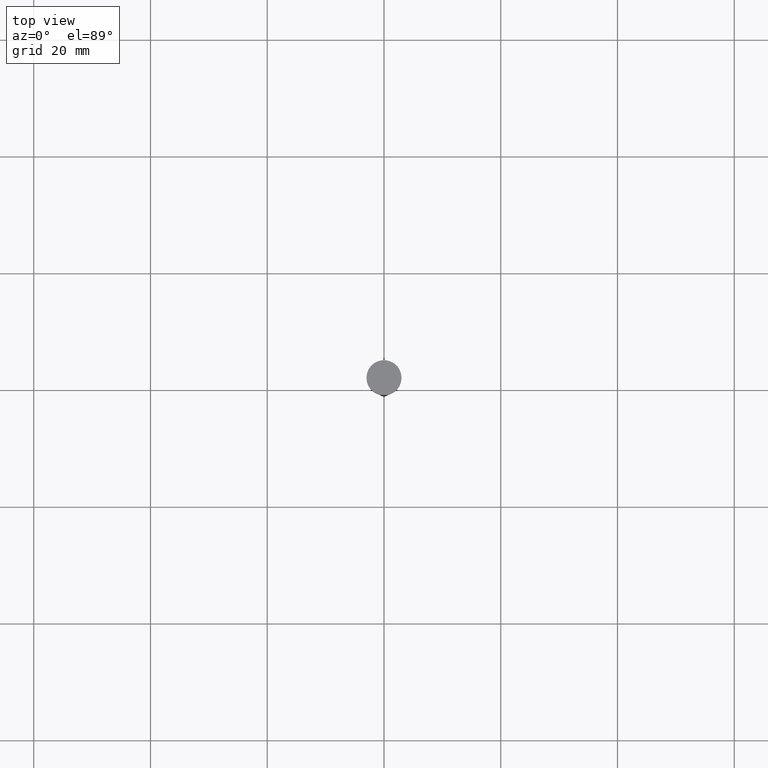
[diagram: clean part render]
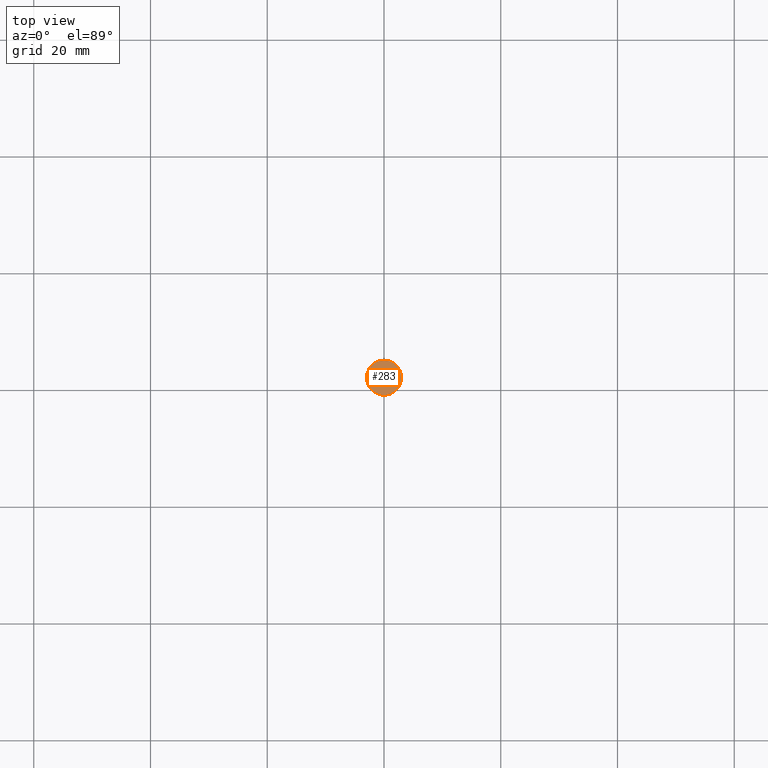
[diagram: same view with one face highlighted and labeled with its STEP entity id]
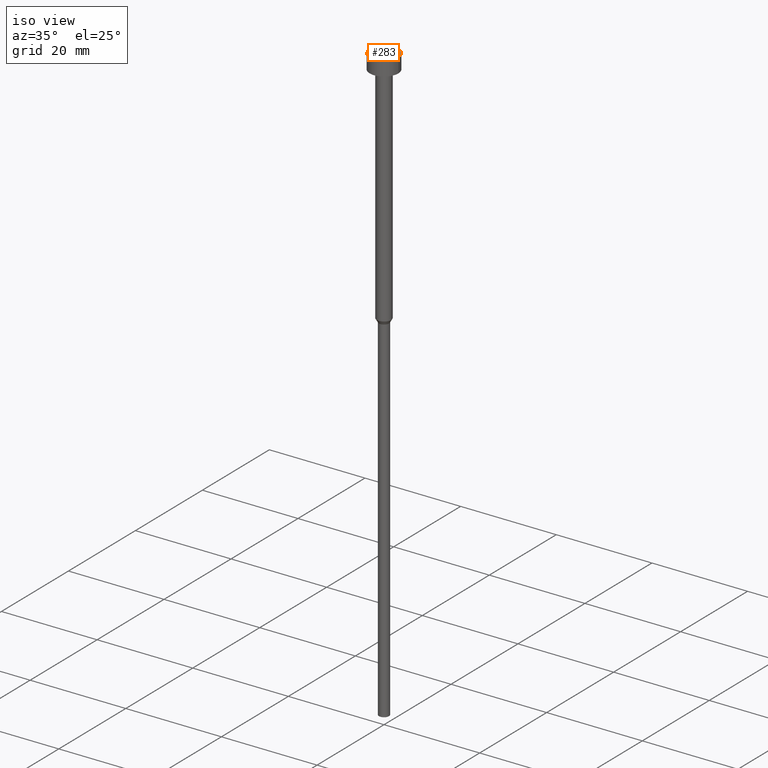
[diagram: same view with one face highlighted and labeled with its STEP entity id]
A machine part, top view. The second image highlights one B-rep face of the part: STEP entity #283.
A second angle (iso view) of the same face is appended — the face is thin or edge-on in the first view.
In plain terms, the highlighted planar face has unit normal (0, -0, 1).
Its self-contained STEP definition (entity closure, byte-faithful):
#5 = DIRECTION ( 'NONE',  ( -0.000000000000000000, -0.000000000000000000, 1.000000000000000000 ) ) ;
#38 = CIRCLE ( 'NONE', #234, 3.000000000000000000 ) ;
#52 = CARTESIAN_POINT ( 'NONE',  ( -3.000000000000000000, 3.673940397442059868E-16, -3.673940397442059868E-16 ) ) ;
#65 = EDGE_LOOP ( 'NONE', ( #341, #300 ) ) ;
#93 = DIRECTION ( 'NONE',  ( -0.000000000000000000, -0.000000000000000000, 1.000000000000000000 ) ) ;
#118 = VERTEX_POINT ( 'NONE', #52 ) ;
#121 = AXIS2_PLACEMENT_3D ( 'NONE', #140, #249, #145 ) ;
#140 = CARTESIAN_POINT ( 'NONE',  ( 0.000000000000000000, 0.000000000000000000, -1.836970198721029934E-16 ) ) ;
#145 = DIRECTION ( 'NONE',  ( 1.000000000000000000, 0.000000000000000000, 0.000000000000000000 ) ) ;
#167 = FACE_OUTER_BOUND ( 'NONE', #65, .T. ) ;
#193 = CIRCLE ( 'NONE', #227, 3.000000000000000000 ) ;
#195 = DIRECTION ( 'NONE',  ( 1.000000000000000000, 0.000000000000000000, 0.000000000000000000 ) ) ;
#226 = CARTESIAN_POINT ( 'NONE',  ( 0.000000000000000000, 0.000000000000000000, -3.673940397442059868E-16 ) ) ;
#227 = AXIS2_PLACEMENT_3D ( 'NONE', #333, #5, #303 ) ;
#234 = AXIS2_PLACEMENT_3D ( 'NONE', #226, #93, #195 ) ;
#249 = DIRECTION ( 'NONE',  ( 0.000000000000000000, -0.000000000000000000, 1.000000000000000000 ) ) ;
#251 = PLANE ( 'NONE',  #121 ) ;
#283 = ADVANCED_FACE ( 'NONE', ( #167 ), #251, .T. ) ;
#300 = ORIENTED_EDGE ( 'NONE', *, *, #304, .T. ) ;
#303 = DIRECTION ( 'NONE',  ( 1.000000000000000000, 0.000000000000000000, 0.000000000000000000 ) ) ;
#304 = EDGE_CURVE ( 'NONE', #118, #327, #193, .T. ) ;
#308 = CARTESIAN_POINT ( 'NONE',  ( 3.000000000000000000, 0.000000000000000000, -3.673940397442059868E-16 ) ) ;
#314 = EDGE_CURVE ( 'NONE', #327, #118, #38, .T. ) ;
#327 = VERTEX_POINT ( 'NONE', #308 ) ;
#333 = CARTESIAN_POINT ( 'NONE',  ( 0.000000000000000000, 0.000000000000000000, -3.673940397442059868E-16 ) ) ;
#341 = ORIENTED_EDGE ( 'NONE', *, *, #314, .T. ) ;